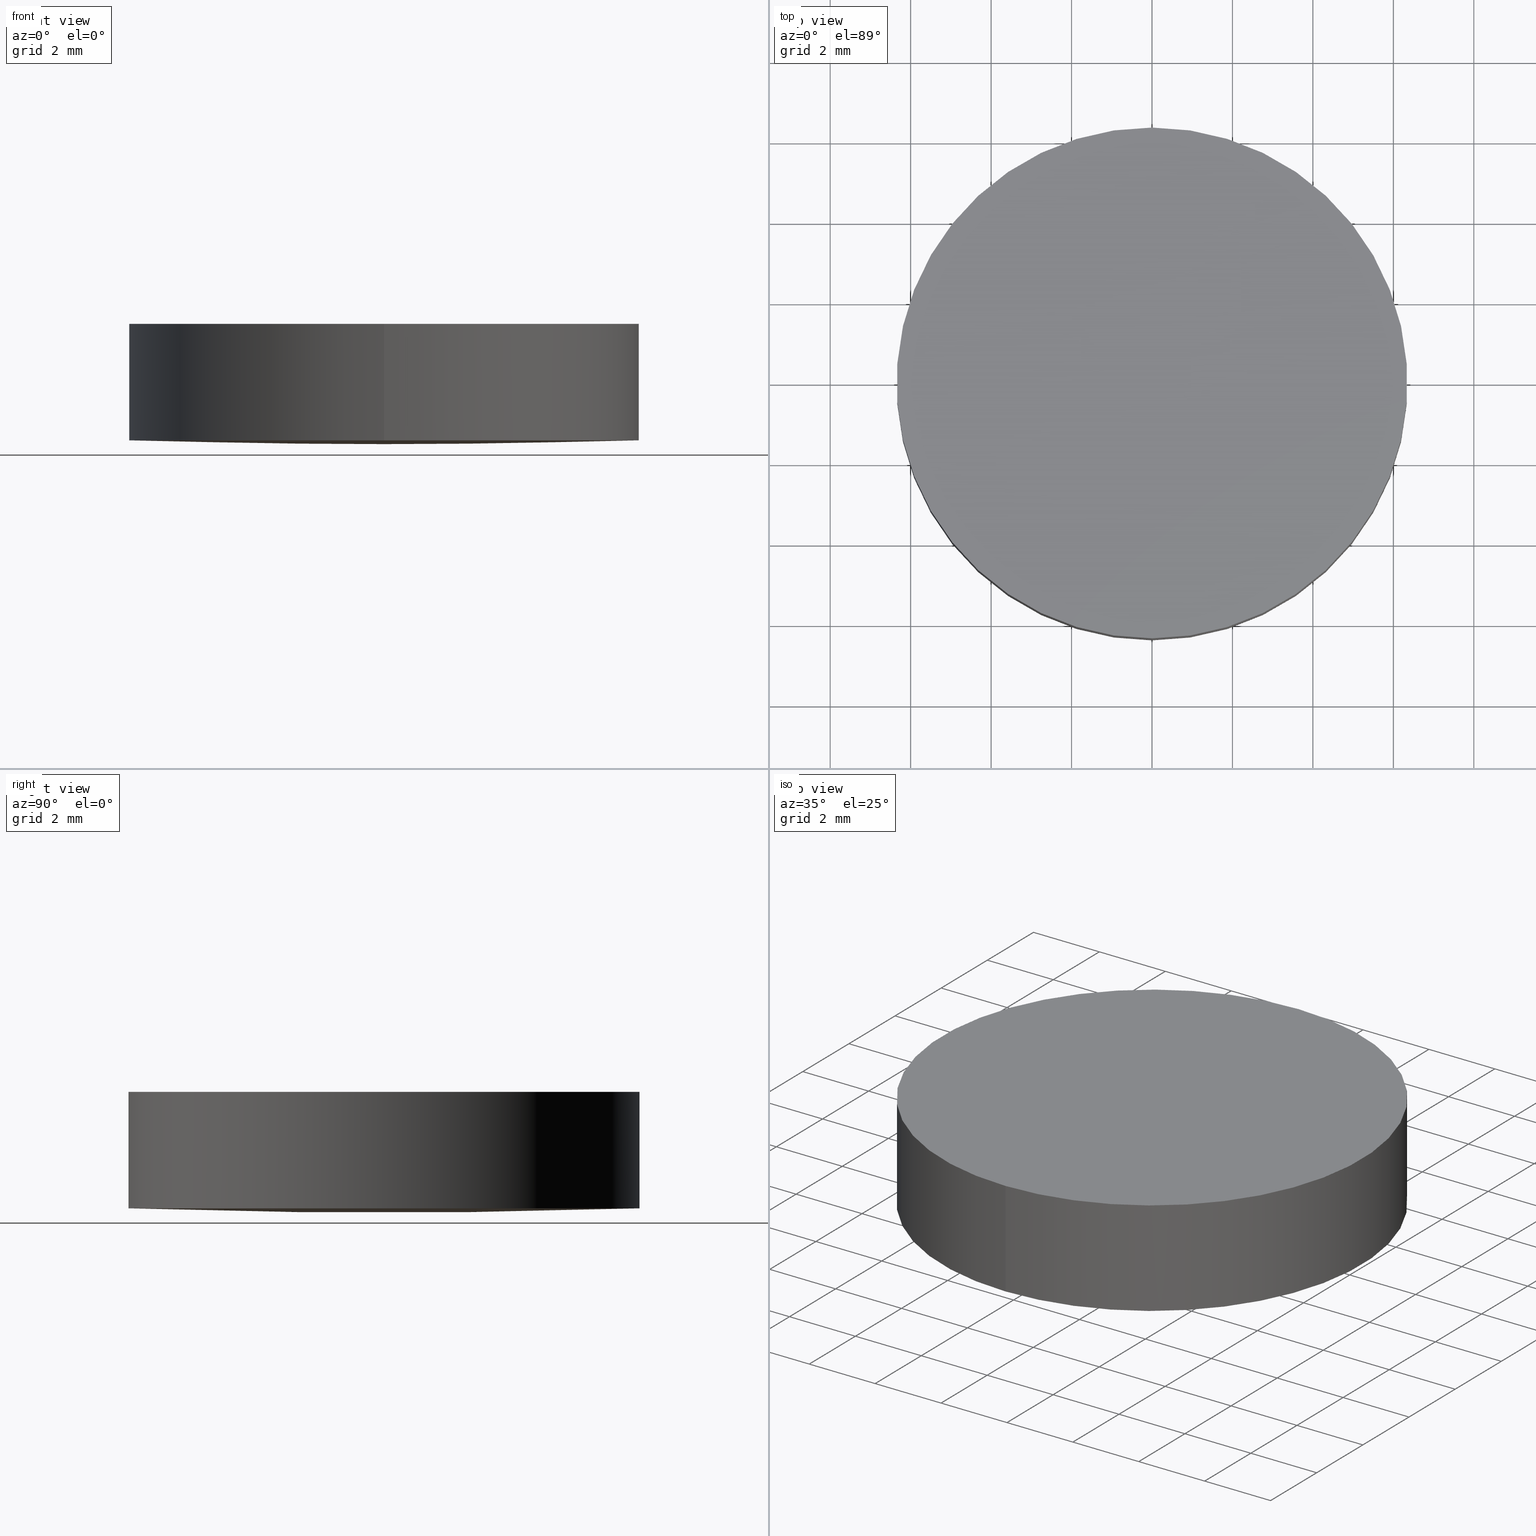
[diagram: canonical four-view strip — front | top / right | iso, engineering-drawing reading convention]
A machine part, canonical four-view strip (front | top / right | iso — engineering-drawing reading convention). The complete STEP part file that produces these views, byte-faithful:
ISO-10303-21;
HEADER;
FILE_DESCRIPTION (( 'STEP AP203' ),
    '1' );
FILE_NAME ('110-1133E UVFS pl-cx 12.7 F400.STEP',
    '2018-12-13T14:49:39',
    ( '' ),
    ( '' ),
    'SwSTEP 2.0',
    'SolidWorks 2017',
    '' );
FILE_SCHEMA (( 'CONFIG_CONTROL_DESIGN' ));
ENDSEC;

DATA;
#1 = VERTEX_POINT ( 'NONE', #187 ) ;
#2 = DIRECTION ( 'NONE',  ( -2.213349001226770100E-032, -1.150855266018229900E-016, 1.000000000000000000 ) ) ;
#3 = PERSON_AND_ORGANIZATION ( #119, #85 ) ;
#4 = CC_DESIGN_APPROVAL ( #196, ( #134 ) ) ;
#5 = CARTESIAN_POINT ( 'NONE',  ( 2.135967986352383300, -6.426171224790698100, 0.1084754294357064800 ) ) ;
#6 = CARTESIAN_POINT ( 'NONE',  ( -2.137591614830287600, -2.142870971459835100, -0.03617221526213789500 ) ) ;
#7 = DIRECTION ( 'NONE',  ( 0.0000000000000000000, -1.000000000000000000, -5.831003280594309600E-016 ) ) ;
#8 = CARTESIAN_POINT ( 'NONE',  ( -2.135967986352493000, 6.426171224790697200, 0.1084754294357020300 ) ) ;
#9 = CARTESIAN_POINT ( 'NONE',  ( -4.271633248913771800, 6.426171224790697200, 0.1444354768692386300 ) ) ;
#10 = LOCAL_TIME ( 16, 49, 39.00000000000000000, #133 ) ;
#11 =( NAMED_UNIT ( * ) PLANE_ANGLE_UNIT ( ) SI_UNIT ( $, .RADIAN. ) );
#12 = ADVANCED_FACE ( 'NONE', ( #52 ), #63, .T. ) ;
#13 = AXIS2_PLACEMENT_3D ( 'NONE', #130, #180, #25 ) ;
#14 = PERSON_AND_ORGANIZATION ( #119, #85 ) ;
#15 =( BOUNDED_SURFACE ( )  B_SPLINE_SURFACE ( 3, 3, ( 
 ( #57, #5, #177, #210 ),
 ( #60, #209, #156, #77 ),
 ( #191, #23, #56, #193 ),
 ( #171, #96, #189, #19 ) ),
 .UNSPECIFIED., .F., .F., .F. ) 
 B_SPLINE_SURFACE_WITH_KNOTS ( ( 4, 4 ),
 ( 4, 4 ),
 ( 0.0000000000000000000, 1.000000000000000000 ),
 ( 0.0000000000000000000, 1.000000000000000000 ),
 .UNSPECIFIED. ) 
 GEOMETRIC_REPRESENTATION_ITEM ( )  RATIONAL_B_SPLINE_SURFACE ( (
 ( 1.000000000000000000, 0.9999055155030216500, 0.9999055155030216500, 1.000000000000000000),
 ( 0.9996201840706031600, 0.9995257354603418500, 0.9995257354603418500, 0.9996201840706031600),
 ( 0.9996201840706031600, 0.9995257354603418500, 0.9995257354603418500, 0.9996201840706031600),
 ( 1.000000000000000000, 0.9999055155030216500, 0.9999055155030216500, 1.000000000000000000) ) ) 
 REPRESENTATION_ITEM ( '' )  SURFACE ( )  );
#16 = CALENDAR_DATE ( 2018, 13, 12 ) ;
#17 = DIRECTION ( 'NONE',  ( 2.213349001226770100E-032, 1.150855266018229900E-016, -1.000000000000000000 ) ) ;
#18 = VERTEX_POINT ( 'NONE', #107 ) ;
#19 = CARTESIAN_POINT ( 'NONE',  ( 6.406390425909620500, 6.426171224790698100, 0.2163453787353275000 ) ) ;
#20 = LINE ( 'NONE', #76, #208 ) ;
#21 = CARTESIAN_POINT ( 'NONE',  ( -4.274880275757779700, -2.142870971459835100, -0.0001848332629856262500 ) ) ;
#22 = CARTESIAN_POINT ( 'NONE',  ( -6.406390425909775000, -6.426171224790699000, 0.2163453787353275500 ) ) ;
#23 = CARTESIAN_POINT ( 'NONE',  ( 2.137591614830178800, 2.142870971459834200, -0.03617221526213600100 ) ) ;
#24 = ORIENTED_EDGE ( 'NONE', *, *, #43, .T. ) ;
#25 = DIRECTION ( 'NONE',  ( 1.000000000000000000, 0.0000000000000000000, 0.0000000000000000000 ) ) ;
#26 = SECURITY_CLASSIFICATION ( '', '', #199 ) ;
#27 = ORIENTED_EDGE ( 'NONE', *, *, #43, .F. ) ;
#28 = APPLICATION_CONTEXT ( 'configuration controlled 3d designs of mechanical parts and assemblies' ) ;
#29 = FACE_OUTER_BOUND ( 'NONE', #149, .T. ) ;
#30 = EDGE_CURVE ( 'NONE', #116, #1, #71, .T. ) ;
#31 = CALENDAR_DATE ( 2018, 13, 12 ) ;
#32 = CLOSED_SHELL ( 'NONE', ( #131, #165, #201, #12, #65 ) ) ;
#33 = APPROVAL_PERSON_ORGANIZATION ( #88, #122, #45 ) ;
#34 = LINE ( 'NONE', #159, #167 ) ;
#35 = DIRECTION ( 'NONE',  ( 0.0000000000000000000, -1.000000000000000000, -1.365923996832131600E-016 ) ) ;
#36 = FACE_OUTER_BOUND ( 'NONE', #79, .T. ) ;
#37 = CARTESIAN_POINT ( 'NONE',  ( -4.263256414560599900E-014, -5.684341886080800200E-014, 190.4000000000000100 ) ) ;
#38 = CC_DESIGN_PERSON_AND_ORGANIZATION_ASSIGNMENT ( #168, #83, ( #26 ) ) ;
#39 = CARTESIAN_POINT ( 'NONE',  ( -8.847089727481716200E-014, -6.426171224790699000, 0.1084754294357015100 ) ) ;
#40 = ORIENTED_EDGE ( 'NONE', *, *, #129, .F. ) ;
#41 = CARTESIAN_POINT ( 'NONE',  ( -2.137591614830287600, 2.142870971459834200, -0.03617221526214047700 ) ) ;
#42 = DIRECTION ( 'NONE',  ( 0.0000000000000000000, -1.000000000000000000, -1.152498372327111000E-016 ) ) ;
#43 = EDGE_CURVE ( 'NONE', #125, #18, #135, .T. ) ;
#44 = APPLICATION_CONTEXT ( 'configuration controlled 3d designs of mechanical parts and assemblies' ) ;
#45 = APPROVAL_ROLE ( '' ) ;
#46 = PERSON_AND_ORGANIZATION_ROLE ( 'design_supplier' ) ;
#47 = FACE_OUTER_BOUND ( 'NONE', #102, .T. ) ;
#48 = AXIS2_PLACEMENT_3D ( 'NONE', #90, #2, #72 ) ;
#49 = DATE_AND_TIME ( #16, #143 ) ;
#50 = CC_DESIGN_APPROVAL ( #150, ( #26 ) ) ;
#51 = COORDINATED_UNIVERSAL_TIME_OFFSET ( 2, 0, .AHEAD. ) ;
#52 = FACE_OUTER_BOUND ( 'NONE', #121, .T. ) ;
#53 = DESIGN_CONTEXT ( 'detailed design', #44, 'design' ) ;
#54 = APPROVAL_PERSON_ORGANIZATION ( #3, #150, #84 ) ;
#55 = EDGE_CURVE ( 'NONE', #125, #18, #110, .T. ) ;
#56 = CARTESIAN_POINT ( 'NONE',  ( 4.274880275757647400, 2.142870971459834200, -0.0001848332629867510800 ) ) ;
#57 = CARTESIAN_POINT ( 'NONE',  ( 2.333170129141856600E-016, -6.426171224790699000, 0.1084754294357059800 ) ) ;
#58 = APPROVAL_DATE_TIME ( #138, #150 ) ;
#59 = ORIENTED_EDGE ( 'NONE', *, *, #30, .T. ) ;
#60 = CARTESIAN_POINT ( 'NONE',  ( 2.659009588438337400E-016, -2.142870971459835100, -0.03617221526213394000 ) ) ;
#61 = AXIS2_PLACEMENT_3D ( 'NONE', #37, #78, #7 ) ;
#62 = CARTESIAN_POINT ( 'NONE',  ( 2.498001805406600200E-016, 1.221245327087670000E-015, 0.1059183789469490000 ) ) ;
#63 = CYLINDRICAL_SURFACE ( 'NONE', #48, 6.349999999999999600 ) ;
#64 = PERSON_AND_ORGANIZATION_ROLE ( 'creator' ) ;
#65 = ADVANCED_FACE ( 'NONE', ( #29 ), #73, .T. ) ;
#66 = PRODUCT_RELATED_PRODUCT_CATEGORY ( 'detail', '', ( #70 ) ) ;
#67 = DATE_TIME_ROLE ( 'creation_date' ) ;
#68 = DATE_AND_TIME ( #118, #215 ) ;
#69 = ADVANCED_BREP_SHAPE_REPRESENTATION ( '110-1133E UVFS pl-cx 12.7 F400', ( #100, #13 ), #109 ) ;
#70 = PRODUCT ( '110-1133E UVFS pl-cx 12.7 F400', '110-1133E UVFS pl-cx 12.7 F400', '', ( #160 ) ) ;
#71 = CIRCLE ( 'NONE', #170, 6.349999999999999600 ) ;
#72 = DIRECTION ( 'NONE',  ( 0.0000000000000000000, -1.000000000000000000, -1.152498372327111000E-016 ) ) ;
#73 = PLANE ( 'NONE',  #127 ) ;
#74 = PERSON_AND_ORGANIZATION ( #119, #85 ) ;
#75 = CARTESIAN_POINT ( 'NONE',  ( 2.498001805406600200E-016, 1.221245327087670000E-015, 0.1059183789469490000 ) ) ;
#76 = CARTESIAN_POINT ( 'NONE',  ( 1.027450897999229200E-015, 6.350000000000000500, 0.1059183789469497300 ) ) ;
#77 = CARTESIAN_POINT ( 'NONE',  ( 6.411260160850332600, -2.142870971459835100, 0.07177972998625654900 ) ) ;
#78 = DIRECTION ( 'NONE',  ( 1.000000000000000000, 0.0000000000000000000, 0.0000000000000000000 ) ) ;
#79 = EDGE_LOOP ( 'NONE', ( #40, #184, #59, #148 ) ) ;
#80 = DIRECTION ( 'NONE',  ( 1.000000000000000000, 0.0000000000000000000, -0.0000000000000000000 ) ) ;
#81 = PERSON_AND_ORGANIZATION_ROLE ( 'design_owner' ) ;
#82 = PERSON_AND_ORGANIZATION ( #119, #85 ) ;
#83 = PERSON_AND_ORGANIZATION_ROLE ( 'classification_officer' ) ;
#84 = APPROVAL_ROLE ( '' ) ;
#85 = ORGANIZATION ( 'UNSPECIFIED', 'UNSPECIFIED', '' ) ;
#86 = CIRCLE ( 'NONE', #188, 6.349999999999999600 ) ;
#87 = CC_DESIGN_PERSON_AND_ORGANIZATION_ASSIGNMENT ( #82, #81, ( #70 ) ) ;
#88 = PERSON_AND_ORGANIZATION ( #119, #85 ) ;
#89 = UNCERTAINTY_MEASURE_WITH_UNIT (LENGTH_MEASURE( 1.000000000000000100E-005 ), #115, 'distance_accuracy_value', 'NONE');
#90 = CARTESIAN_POINT ( 'NONE',  ( 2.498001805406600200E-016, 1.221245327087670000E-015, 0.1059183789469490000 ) ) ;
#91 = CARTESIAN_POINT ( 'NONE',  ( 1.027450897999229200E-015, 6.350000000000000500, 3.000000000000000900 ) ) ;
#92 = DIRECTION ( 'NONE',  ( 2.213349001226770100E-032, 1.150855266018229900E-016, -1.000000000000000000 ) ) ;
#93 = DIRECTION ( 'NONE',  ( -2.213349001226770100E-032, -1.150855266018229900E-016, 1.000000000000000000 ) ) ;
#94 = FACE_OUTER_BOUND ( 'NONE', #164, .T. ) ;
#95 = CARTESIAN_POINT ( 'NONE',  ( -8.847089727481716200E-014, 2.142870971459834200, -0.03617221526214099000 ) ) ;
#96 = CARTESIAN_POINT ( 'NONE',  ( 2.135967986352383300, 6.426171224790697200, 0.1084754294357064800 ) ) ;
#97 = DIRECTION ( 'NONE',  ( -2.213349001226770100E-032, -1.150855266018229900E-016, 1.000000000000000000 ) ) ;
#98 = DATE_AND_TIME ( #31, #10 ) ;
#99 = APPLICATION_PROTOCOL_DEFINITION ( 'international standard', 'config_control_design', 1994, #28 ) ;
#100 = MANIFOLD_SOLID_BREP ( 'Imported1', #32 ) ;
#101 = APPROVAL_DATE_TIME ( #49, #196 ) ;
#102 = EDGE_LOOP ( 'NONE', ( #106, #24 ) ) ;
#103 = LOCAL_TIME ( 16, 49, 39.00000000000000000, #146 ) ;
#104 = PERSON_AND_ORGANIZATION ( #119, #85 ) ;
#105 = ORIENTED_EDGE ( 'NONE', *, *, #151, .F. ) ;
#106 = ORIENTED_EDGE ( 'NONE', *, *, #55, .F. ) ;
#107 = CARTESIAN_POINT ( 'NONE',  ( 1.027450897999229200E-015, 6.350000000000000500, 0.1059183789469497300 ) ) ;
#108 = CARTESIAN_POINT ( 'NONE',  ( -6.411260160850487100, -2.142870971459835100, 0.07177972998625663200 ) ) ;
#109 =( GEOMETRIC_REPRESENTATION_CONTEXT ( 3 ) GLOBAL_UNCERTAINTY_ASSIGNED_CONTEXT ( ( #89 ) ) GLOBAL_UNIT_ASSIGNED_CONTEXT ( ( #115, #11, #144 ) ) REPRESENTATION_CONTEXT ( 'NONE', 'WORKASPACE' ) );
#110 = CIRCLE ( 'NONE', #61, 190.4000000000000100 ) ;
#111 = DIRECTION ( 'NONE',  ( 2.213349001226770100E-032, 1.150855266018229900E-016, -1.000000000000000000 ) ) ;
#112 = CARTESIAN_POINT ( 'NONE',  ( 2.498001805406600200E-016, -6.349999999999998800, 0.1059183789469482600 ) ) ;
#113 = APPROVAL_STATUS ( 'not_yet_approved' ) ;
#114 = CIRCLE ( 'NONE', #163, 6.349999999999999600 ) ;
#115 =( LENGTH_UNIT ( ) NAMED_UNIT ( * ) SI_UNIT ( .MILLI., .METRE. ) );
#116 = VERTEX_POINT ( 'NONE', #91 ) ;
#117 = PRODUCT_DEFINITION ( 'UNKNOWN', '', #134, #53 ) ;
#118 = CALENDAR_DATE ( 2018, 13, 12 ) ;
#119 = PERSON ( 'UNSPECIFIED', 'UNSPECIFIED', 'UNSPECIFIED', ('UNSPECIFIED'), ('UNSPECIFIED'), ('UNSPECIFIED') ) ;
#120 = ORIENTED_EDGE ( 'NONE', *, *, #179, .F. ) ;
#121 = EDGE_LOOP ( 'NONE', ( #105, #27, #195, #154 ) ) ;
#122 = APPROVAL ( #147, 'UNSPECIFIED' ) ;
#123 = CYLINDRICAL_SURFACE ( 'NONE', #152, 6.349999999999999600 ) ;
#124 = CARTESIAN_POINT ( 'NONE',  ( 0.0000000000000000000, 13.15799999999999900, 3.000000000000000000 ) ) ;
#125 = VERTEX_POINT ( 'NONE', #112 ) ;
#126 = CARTESIAN_POINT ( 'NONE',  ( 2.498001805406599800E-016, 8.881784197001221800E-016, 3.000000000000000000 ) ) ;
#127 = AXIS2_PLACEMENT_3D ( 'NONE', #124, #211, #80 ) ;
#128 = PERSON_AND_ORGANIZATION_ROLE ( 'creator' ) ;
#129 = EDGE_CURVE ( 'NONE', #18, #125, #114, .T. ) ;
#130 = CARTESIAN_POINT ( 'NONE',  ( 0.0000000000000000000, 0.0000000000000000000, 0.0000000000000000000 ) ) ;
#131 = ADVANCED_FACE ( 'NONE', ( #94 ), #15, .T. ) ;
#132 = ORIENTED_EDGE ( 'NONE', *, *, #129, .T. ) ;
#133 = COORDINATED_UNIVERSAL_TIME_OFFSET ( 2, 0, .AHEAD. ) ;
#134 = PRODUCT_DEFINITION_FORMATION_WITH_SPECIFIED_SOURCE ( 'ANY', '', #70, .NOT_KNOWN. ) ;
#135 = CIRCLE ( 'NONE', #176, 6.349999999999999600 ) ;
#136 = CC_DESIGN_APPROVAL ( #122, ( #117 ) ) ;
#137 = CARTESIAN_POINT ( 'NONE',  ( -8.847089727481716200E-014, 6.426171224790698100, 0.1084754294357015100 ) ) ;
#138 = DATE_AND_TIME ( #190, #182 ) ;
#139 = ORIENTED_EDGE ( 'NONE', *, *, #30, .F. ) ;
#140 = CARTESIAN_POINT ( 'NONE',  ( -4.271633248913771800, -6.426171224790698100, 0.1444354768692386300 ) ) ;
#141 = CARTESIAN_POINT ( 'NONE',  ( -6.406390425909775000, 6.426171224790698100, 0.2163453787353275500 ) ) ;
#142 = DIRECTION ( 'NONE',  ( 0.0000000000000000000, -1.000000000000000000, -1.152498372327111000E-016 ) ) ;
#143 = LOCAL_TIME ( 16, 49, 39.00000000000000000, #153 ) ;
#144 =( NAMED_UNIT ( * ) SI_UNIT ( $, .STERADIAN. ) SOLID_ANGLE_UNIT ( ) );
#145 = APPLICATION_PROTOCOL_DEFINITION ( 'international standard', 'config_control_design', 1994, #44 ) ;
#146 = COORDINATED_UNIVERSAL_TIME_OFFSET ( 2, 0, .AHEAD. ) ;
#147 = APPROVAL_STATUS ( 'not_yet_approved' ) ;
#148 = ORIENTED_EDGE ( 'NONE', *, *, #202, .F. ) ;
#149 = EDGE_LOOP ( 'NONE', ( #120, #139 ) ) ;
#150 = APPROVAL ( #113, 'UNSPECIFIED' ) ;
#151 = EDGE_CURVE ( 'NONE', #18, #116, #20, .T. ) ;
#152 = AXIS2_PLACEMENT_3D ( 'NONE', #75, #93, #142 ) ;
#153 = COORDINATED_UNIVERSAL_TIME_OFFSET ( 2, 0, .AHEAD. ) ;
#154 = ORIENTED_EDGE ( 'NONE', *, *, #179, .T. ) ;
#155 = CARTESIAN_POINT ( 'NONE',  ( -8.847089727481716200E-014, -2.142870971459835100, -0.03617221526213840900 ) ) ;
#156 = CARTESIAN_POINT ( 'NONE',  ( 4.274880275757647400, -2.142870971459835100, -0.0001848332629842032300 ) ) ;
#157 = DIRECTION ( 'NONE',  ( 2.213349001226770100E-032, 1.150855266018229900E-016, -1.000000000000000000 ) ) ;
#158 = CC_DESIGN_PERSON_AND_ORGANIZATION_ASSIGNMENT ( #14, #64, ( #117 ) ) ;
#159 = CARTESIAN_POINT ( 'NONE',  ( 2.498001805406600200E-016, -6.349999999999998800, 0.1059183789469482600 ) ) ;
#160 = MECHANICAL_CONTEXT ( 'NONE', #28, 'mechanical' ) ;
#161 = APPROVAL_PERSON_ORGANIZATION ( #74, #196, #213 ) ;
#162 = CC_DESIGN_DATE_AND_TIME_ASSIGNMENT ( #166, #67, ( #117 ) ) ;
#163 = AXIS2_PLACEMENT_3D ( 'NONE', #62, #111, #42 ) ;
#164 = EDGE_LOOP ( 'NONE', ( #132, #203 ) ) ;
#165 = ADVANCED_FACE ( 'NONE', ( #36 ), #123, .T. ) ;
#166 = DATE_AND_TIME ( #207, #103 ) ;
#167 = VECTOR ( 'NONE', #214, 1000.000000000000000 ) ;
#168 = PERSON_AND_ORGANIZATION ( #119, #85 ) ;
#169 = CARTESIAN_POINT ( 'NONE',  ( 2.498001805406600200E-016, 1.221245327087670000E-015, 0.1059183789469490000 ) ) ;
#170 = AXIS2_PLACEMENT_3D ( 'NONE', #204, #17, #35 ) ;
#171 = CARTESIAN_POINT ( 'NONE',  ( 2.333170129141856600E-016, 6.426171224790698100, 0.1084754294357059800 ) ) ;
#172 = CARTESIAN_POINT ( 'NONE',  ( -2.135967986352493000, -6.426171224790698100, 0.1084754294357020300 ) ) ;
#173 = CC_DESIGN_PERSON_AND_ORGANIZATION_ASSIGNMENT ( #104, #46, ( #134 ) ) ;
#174 = CARTESIAN_POINT ( 'NONE',  ( -6.411260160850487100, 2.142870971459834200, 0.07177972998625406500 ) ) ;
#175 = COORDINATED_UNIVERSAL_TIME_OFFSET ( 2, 0, .AHEAD. ) ;
#176 = AXIS2_PLACEMENT_3D ( 'NONE', #169, #92, #205 ) ;
#177 = CARTESIAN_POINT ( 'NONE',  ( 4.271633248913637700, -6.426171224790698100, 0.1444354768692401000 ) ) ;
#178 = PERSON_AND_ORGANIZATION ( #119, #85 ) ;
#179 = EDGE_CURVE ( 'NONE', #1, #116, #86, .T. ) ;
#180 = DIRECTION ( 'NONE',  ( 0.0000000000000000000, 0.0000000000000000000, 1.000000000000000000 ) ) ;
#181 = DATE_TIME_ROLE ( 'classification_date' ) ;
#182 = LOCAL_TIME ( 16, 49, 39.00000000000000000, #51 ) ;
#183 = CC_DESIGN_SECURITY_CLASSIFICATION ( #26, ( #134 ) ) ;
#184 = ORIENTED_EDGE ( 'NONE', *, *, #151, .T. ) ;
#185 = CC_DESIGN_DATE_AND_TIME_ASSIGNMENT ( #68, #181, ( #26 ) ) ;
#186 = APPROVAL_DATE_TIME ( #98, #122 ) ;
#187 = CARTESIAN_POINT ( 'NONE',  ( 2.498001805406599800E-016, -6.349999999999998800, 2.999999999999999100 ) ) ;
#188 = AXIS2_PLACEMENT_3D ( 'NONE', #126, #157, #194 ) ;
#189 = CARTESIAN_POINT ( 'NONE',  ( 4.271633248913637700, 6.426171224790697200, 0.1444354768692401000 ) ) ;
#190 = CALENDAR_DATE ( 2018, 13, 12 ) ;
#191 = CARTESIAN_POINT ( 'NONE',  ( 2.659009588438332000E-016, 2.142870971459834200, -0.03617221526213649400 ) ) ;
#192 = CARTESIAN_POINT ( 'NONE',  ( -4.274880275757779700, 2.142870971459834200, -0.0001848332629882011700 ) ) ;
#193 = CARTESIAN_POINT ( 'NONE',  ( 6.411260160850332600, 2.142870971459834200, 0.07177972998625400900 ) ) ;
#194 = DIRECTION ( 'NONE',  ( 0.0000000000000000000, -1.000000000000000000, -1.365923996832131600E-016 ) ) ;
#195 = ORIENTED_EDGE ( 'NONE', *, *, #202, .T. ) ;
#196 = APPROVAL ( #198, 'UNSPECIFIED' ) ;
#197 = PRODUCT_DEFINITION_SHAPE ( 'NONE', 'NONE',  #117 ) ;
#198 = APPROVAL_STATUS ( 'not_yet_approved' ) ;
#199 = SECURITY_CLASSIFICATION_LEVEL ( 'unclassified' ) ;
#200 = SHAPE_DEFINITION_REPRESENTATION ( #197, #69 ) ;
#201 = ADVANCED_FACE ( 'NONE', ( #47 ), #212, .T. ) ;
#202 = EDGE_CURVE ( 'NONE', #125, #1, #34, .T. ) ;
#203 = ORIENTED_EDGE ( 'NONE', *, *, #55, .T. ) ;
#204 = CARTESIAN_POINT ( 'NONE',  ( 2.498001805406599800E-016, 8.881784197001221800E-016, 3.000000000000000000 ) ) ;
#205 = DIRECTION ( 'NONE',  ( 0.0000000000000000000, -1.000000000000000000, -1.152498372327111000E-016 ) ) ;
#206 = CC_DESIGN_PERSON_AND_ORGANIZATION_ASSIGNMENT ( #178, #128, ( #134 ) ) ;
#207 = CALENDAR_DATE ( 2018, 13, 12 ) ;
#208 = VECTOR ( 'NONE', #97, 1000.000000000000000 ) ;
#209 = CARTESIAN_POINT ( 'NONE',  ( 2.137591614830178800, -2.142870971459835100, -0.03617221526213346100 ) ) ;
#210 = CARTESIAN_POINT ( 'NONE',  ( 6.406390425909620500, -6.426171224790699000, 0.2163453787353274700 ) ) ;
#211 = DIRECTION ( 'NONE',  ( 0.0000000000000000000, 0.0000000000000000000, 1.000000000000000000 ) ) ;
#212 =( BOUNDED_SURFACE ( )  B_SPLINE_SURFACE ( 3, 3, ( 
 ( #22, #140, #172, #39 ),
 ( #108, #21, #6, #155 ),
 ( #174, #192, #41, #95 ),
 ( #141, #9, #8, #137 ) ),
 .UNSPECIFIED., .F., .F., .F. ) 
 B_SPLINE_SURFACE_WITH_KNOTS ( ( 4, 4 ),
 ( 4, 4 ),
 ( 0.0000000000000000000, 1.000000000000000000 ),
 ( 0.0000000000000000000, 1.000000000000000000 ),
 .UNSPECIFIED. ) 
 GEOMETRIC_REPRESENTATION_ITEM ( )  RATIONAL_B_SPLINE_SURFACE ( (
 ( 1.000000000000000000, 0.9999055155030216500, 0.9999055155030216500, 1.000000000000000000),
 ( 0.9996201840706031600, 0.9995257354603418500, 0.9995257354603418500, 0.9996201840706031600),
 ( 0.9996201840706031600, 0.9995257354603418500, 0.9995257354603418500, 0.9996201840706031600),
 ( 1.000000000000000000, 0.9999055155030216500, 0.9999055155030216500, 1.000000000000000000) ) ) 
 REPRESENTATION_ITEM ( '' )  SURFACE ( )  );
#213 = APPROVAL_ROLE ( '' ) ;
#214 = DIRECTION ( 'NONE',  ( -2.213349001226770100E-032, -1.150855266018229900E-016, 1.000000000000000000 ) ) ;
#215 = LOCAL_TIME ( 16, 49, 39.00000000000000000, #175 ) ;
ENDSEC;
END-ISO-10303-21;
